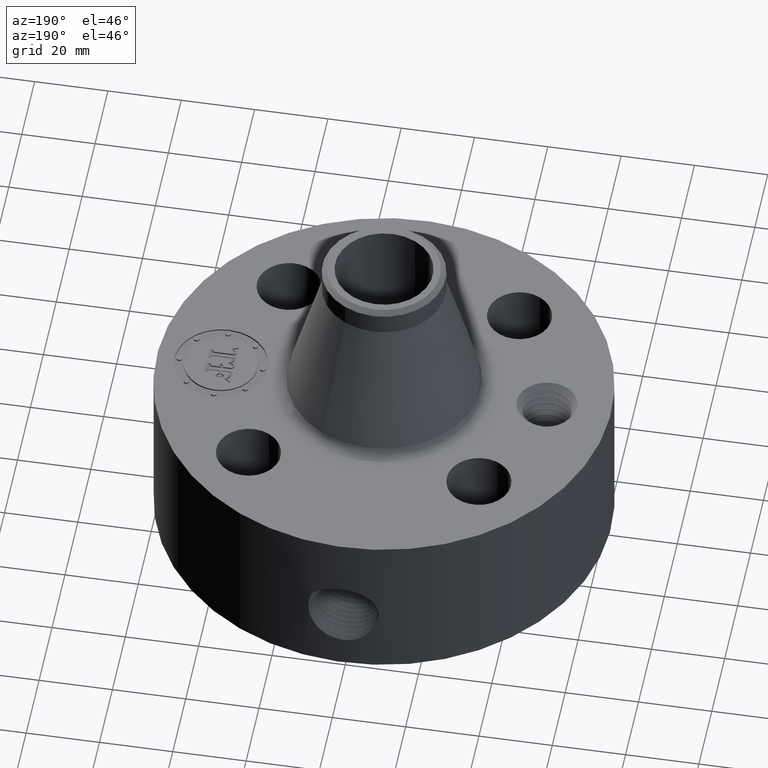
[diagram: clean part render]
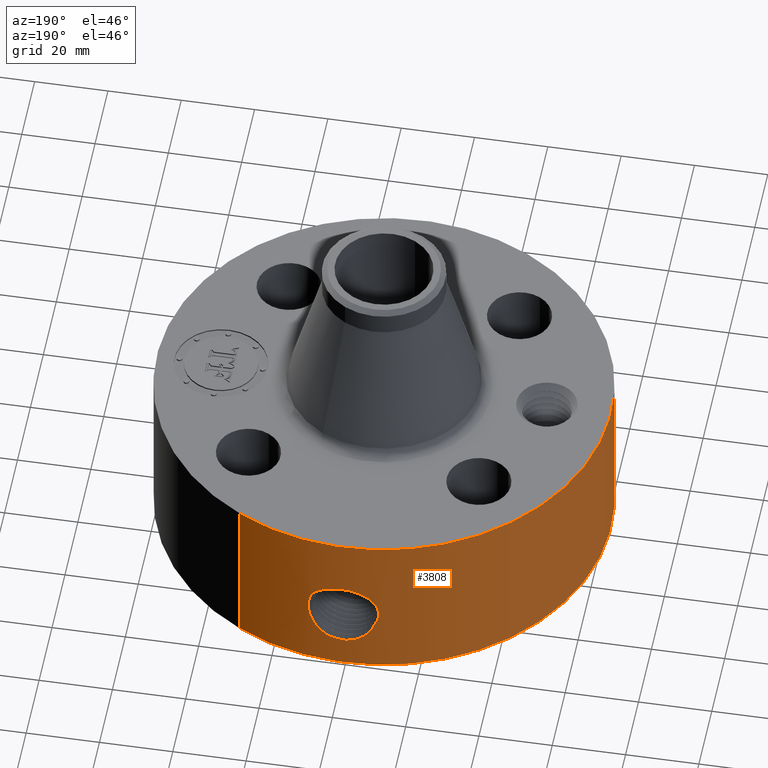
[diagram: same view with one face highlighted and labeled with its STEP entity id]
A machine part, auxiliary view. The second image highlights one B-rep face of the part: STEP entity #3808.
In plain terms, the highlighted cylindrical surface (partial cylindrical patch) has radius 61.976 mm, axis along (0, 0, -1).
Its self-contained STEP definition (entity closure, byte-faithful):
#2927=AXIS2_PLACEMENT_3D('Circle Axis2P3D',#2925,#2926,$) ;
#3663=AXIS2_PLACEMENT_3D('Cylinder Axis2P3D',#3660,#3661,#3662) ;
#3667=AXIS2_PLACEMENT_3D('Circle Axis2P3D',#3665,#3666,$) ;
#2920=CARTESIAN_POINT('Vertex',(1.1697983142,2.14130145102,1.75000000001)) ;
#2922=CARTESIAN_POINT('Vertex',(-1.1697983142,-2.14130145102,1.75000000001)) ;
#2925=CARTESIAN_POINT('Axis2P3D Location',(0.,0.,1.75000000001)) ;
#3660=CARTESIAN_POINT('Axis2P3D Location',(0.,0.,1.75000000001)) ;
#3665=CARTESIAN_POINT('Axis2P3D Location',(0.,0.,2.79741234551E-016)) ;
#3669=CARTESIAN_POINT('Vertex',(-1.1697983142,-2.14130145102,2.79741234551E-016)) ;
#3671=CARTESIAN_POINT('Vertex',(1.1697983142,2.14130145102,2.79741234551E-016)) ;
#3674=CARTESIAN_POINT('Line Origine',(-1.1697983142,-2.14130145102,0.875000000004)) ;
#3679=CARTESIAN_POINT('Line Origine',(1.1697983142,2.14130145102,0.875000000004)) ;
#3691=CARTESIAN_POINT('Control Point',(-0.161921597663,2.43462140717,1.06474245937)) ;
#3692=CARTESIAN_POINT('Control Point',(-0.124761681234,2.4370928358,1.08394650334)) ;
#3693=CARTESIAN_POINT('Control Point',(-0.0845285028847,2.43901250292,1.0973010247)) ;
#3694=CARTESIAN_POINT('Control Point',(-0.0426266272238,2.43998754964,1.10403308462)) ;
#3695=CARTESIAN_POINT('Control Point',(-0.000718733642933,2.43999989415,1.10411849633)) ;
#3696=CARTESIAN_POINT('Vertex',(-0.161921603957,2.43462140677,1.06474245628)) ;
#3698=CARTESIAN_POINT('Vertex',(-0.00071846914496,2.43999989423,1.10411850216)) ;
#3702=CARTESIAN_POINT('Control Point',(-0.16989837306,2.43407776024,1.06094225976)) ;
#3703=CARTESIAN_POINT('Control Point',(-0.167252430961,2.43426244672,1.06223769884)) ;
#3704=CARTESIAN_POINT('Control Point',(-0.164593291317,2.43444371839,1.06350443812)) ;
#3705=CARTESIAN_POINT('Control Point',(-0.161921603303,2.4346214068,1.06474245341)) ;
#3706=CARTESIAN_POINT('Vertex',(-0.16989837306,2.43407776024,1.06094225976)) ;
#3710=CARTESIAN_POINT('Control Point',(-0.328116387489,2.4178378019,0.618661723858)) ;
#3711=CARTESIAN_POINT('Control Point',(-0.35126682774,2.4146961359,0.657920672738)) ;
#3712=CARTESIAN_POINT('Control Point',(-0.3675370712,2.41220597726,0.701967162842)) ;
#3713=CARTESIAN_POINT('Control Point',(-0.374754425762,2.41102143699,0.749647117423)) ;
#3714=CARTESIAN_POINT('Control Point',(-0.370017228771,2.41184047688,0.818715678685)) ;
#3715=CARTESIAN_POINT('Control Point',(-0.346589006547,2.41527741699,0.882571964519)) ;
#3716=CARTESIAN_POINT('Control Point',(-0.337668354668,2.41655315485,0.901622048981)) ;
#3717=CARTESIAN_POINT('Control Point',(-0.30776426632,2.42066054448,0.953874985382)) ;
#3718=CARTESIAN_POINT('Control Point',(-0.266998854197,2.42558827079,0.998208638787)) ;
#3719=CARTESIAN_POINT('Control Point',(-0.236947856094,2.42878500543,1.02314596167)) ;
#3720=CARTESIAN_POINT('Control Point',(-0.204355858351,2.43167263137,1.04407205891)) ;
#3721=CARTESIAN_POINT('Control Point',(-0.16989837306,2.43407776024,1.06094225976)) ;
#3722=CARTESIAN_POINT('Vertex',(-0.328116863787,2.41783753267,0.618661777742)) ;
#3726=CARTESIAN_POINT('Control Point',(-0.32042422399,2.41886922274,0.600797421047)) ;
#3727=CARTESIAN_POINT('Control Point',(-0.323151377015,2.41850796059,0.606680957362)) ;
#3728=CARTESIAN_POINT('Control Point',(-0.32571735253,2.41816336849,0.612639984979)) ;
#3729=CARTESIAN_POINT('Control Point',(-0.328118231473,2.41783755166,0.618665577787)) ;
#3730=CARTESIAN_POINT('Vertex',(-0.32042488499,2.41886937056,0.600798487442)) ;
#3734=CARTESIAN_POINT('Control Point',(-0.0268393762839,2.43985238241,0.340897556554)) ;
#3735=CARTESIAN_POINT('Control Point',(-0.111814843384,2.43891761744,0.352087011189)) ;
#3736=CARTESIAN_POINT('Control Point',(-0.192381419422,2.4342320407,0.392047143247)) ;
#3737=CARTESIAN_POINT('Control Point',(-0.253315060842,2.42735806859,0.45429132194)) ;
#3738=CARTESIAN_POINT('Control Point',(-0.2960420997,2.42209909205,0.525167593064)) ;
#3739=CARTESIAN_POINT('Control Point',(-0.320424554948,2.4188691789,0.600798563388)) ;
#3740=CARTESIAN_POINT('Vertex',(-0.0268393762839,2.43985238241,0.340897556554)) ;
#3744=CARTESIAN_POINT('Control Point',(-0.0268393762839,2.43985238241,0.340897556554)) ;
#3745=CARTESIAN_POINT('Control Point',(-0.0178847904718,2.43995088652,0.340836461491)) ;
#3746=CARTESIAN_POINT('Control Point',(-0.00893312174488,2.44000001,0.340995456562)) ;
#3747=CARTESIAN_POINT('Control Point',(2.72878352834E-006,2.44000000001,0.341374667803)) ;
#3748=CARTESIAN_POINT('Vertex',(2.72878353331E-006,2.44000000001,0.341374667803)) ;
#3752=CARTESIAN_POINT('Control Point',(0.165475449319,2.43438244237,0.375082959451)) ;
#3753=CARTESIAN_POINT('Control Point',(0.112561961607,2.43797919981,0.354988749023)) ;
#3754=CARTESIAN_POINT('Control Point',(0.0565391785854,2.43999993678,0.343773908797)) ;
#3755=CARTESIAN_POINT('Control Point',(2.72878353268E-006,2.44000000001,0.341374667803)) ;
#3756=CARTESIAN_POINT('Vertex',(0.165475449319,2.43438244237,0.375082959451)) ;
#3760=CARTESIAN_POINT('Control Point',(0.165475449319,2.43438244237,0.375082959451)) ;
#3761=CARTESIAN_POINT('Control Point',(0.175740355042,2.43368469256,0.380334541078)) ;
#3762=CARTESIAN_POINT('Control Point',(0.185738682548,2.43293968557,0.386087518414)) ;
#3763=CARTESIAN_POINT('Control Point',(0.195421989316,2.43216164063,0.392285375744)) ;
#3764=CARTESIAN_POINT('Vertex',(0.195421989316,2.43216164063,0.392285375744)) ;
#3768=CARTESIAN_POINT('Control Point',(0.195421989316,2.43216164063,0.392285375744)) ;
#3769=CARTESIAN_POINT('Control Point',(0.247998274294,2.42793718365,0.425937136214)) ;
#3770=CARTESIAN_POINT('Control Point',(0.293011532848,2.42289055351,0.470601242801)) ;
#3771=CARTESIAN_POINT('Control Point',(0.328229741813,2.41805808377,0.522425706064)) ;
#3772=CARTESIAN_POINT('Control Point',(0.382261846784,2.41005605303,0.639676923907)) ;
#3773=CARTESIAN_POINT('Control Point',(0.395270517985,2.4077303253,0.768065726479)) ;
#3774=CARTESIAN_POINT('Control Point',(0.390965859778,2.40847371332,0.835617745372)) ;
#3775=CARTESIAN_POINT('Control Point',(0.375402848798,2.41110143568,0.902021538032)) ;
#3776=CARTESIAN_POINT('Control Point',(0.348525603778,2.41498031122,0.964426404841)) ;
#3777=CARTESIAN_POINT('Vertex',(0.348525603778,2.41498031122,0.964426404841)) ;
#3781=CARTESIAN_POINT('Control Point',(0.348525603778,2.41498031122,0.964426404841)) ;
#3782=CARTESIAN_POINT('Control Point',(0.294301928899,2.4228057742,1.02385968626)) ;
#3783=CARTESIAN_POINT('Control Point',(0.226049800313,2.4311025376,1.06810664465)) ;
#3784=CARTESIAN_POINT('Control Point',(0.151999405676,2.43708485742,1.09575225398)) ;
#3785=CARTESIAN_POINT('Control Point',(0.0753414238431,2.44000079858,1.10784713779)) ;
#3786=CARTESIAN_POINT('Control Point',(-2.5857935471E-005,2.43999999987,1.10415298447)) ;
#3787=CARTESIAN_POINT('Vertex',(-2.58579354743E-005,2.43999999987,1.10415298447)) ;
#3791=CARTESIAN_POINT('Control Point',(-0.000718469128843,2.43999989423,1.10411850214)) ;
#3792=CARTESIAN_POINT('Control Point',(-0.000372184810261,2.4399999962,1.10413600914)) ;
#3793=CARTESIAN_POINT('Control Point',(-2.58579482019E-005,2.43999999987,1.10415298447)) ;
#2926=DIRECTION('Axis2P3D Direction',(0.,0.,-0.0393700787402)) ;
#3661=DIRECTION('Axis2P3D Direction',(0.,0.,-0.0393700787402)) ;
#3662=DIRECTION('Axis2P3D XDirection',(0.0188750212049,0.0345504945626,0.)) ;
#3666=DIRECTION('Axis2P3D Direction',(0.,0.,-0.0393700787402)) ;
#3675=DIRECTION('Vector Direction',(0.,0.,-0.0393700787402)) ;
#3680=DIRECTION('Vector Direction',(0.,0.,-0.0393700787402)) ;
#3676=VECTOR('Line Direction',#3675,0.0393700787402) ;
#3681=VECTOR('Line Direction',#3680,0.0393700787402) ;
#3685=ORIENTED_EDGE('',*,*,#3673,.F.) ;
#3686=ORIENTED_EDGE('',*,*,#3678,.T.) ;
#3687=ORIENTED_EDGE('',*,*,#2929,.T.) ;
#3688=ORIENTED_EDGE('',*,*,#3683,.F.) ;
#3796=ORIENTED_EDGE('',*,*,#3700,.F.) ;
#3797=ORIENTED_EDGE('',*,*,#3708,.F.) ;
#3798=ORIENTED_EDGE('',*,*,#3724,.F.) ;
#3799=ORIENTED_EDGE('',*,*,#3732,.F.) ;
#3800=ORIENTED_EDGE('',*,*,#3742,.F.) ;
#3801=ORIENTED_EDGE('',*,*,#3750,.T.) ;
#3802=ORIENTED_EDGE('',*,*,#3758,.F.) ;
#3803=ORIENTED_EDGE('',*,*,#3766,.T.) ;
#3804=ORIENTED_EDGE('',*,*,#3779,.T.) ;
#3805=ORIENTED_EDGE('',*,*,#3789,.T.) ;
#3806=ORIENTED_EDGE('',*,*,#3794,.F.) ;
#3807=FACE_BOUND('',#3795,.T.) ;
#3808=ADVANCED_FACE('PartBody',(#3689,#3807),#3664,.T.) ;
#3690=B_SPLINE_CURVE_WITH_KNOTS('',4,(#3691,#3692,#3693,#3694,#3695),.UNSPECIFIED.,.F.,.U.,(5,5),(0.175518111332,6.3746236711),.UNSPECIFIED.) ;
#3701=B_SPLINE_CURVE_WITH_KNOTS('',3,(#3702,#3703,#3704,#3705),.UNSPECIFIED.,.F.,.U.,(4,4),(0.,0.330159471807),.UNSPECIFIED.) ;
#3709=B_SPLINE_CURVE_WITH_KNOTS('',5,(#3710,#3711,#3712,#3713,#3714,#3715,#3716,#3717,#3718,#3719,#3720,#3721),.UNSPECIFIED.,.F.,.U.,(6,3,3,6),(0.,8.53095161516,12.3556757929,19.5216585171),.UNSPECIFIED.) ;
#3725=B_SPLINE_CURVE_WITH_KNOTS('',3,(#3726,#3727,#3728,#3729),.UNSPECIFIED.,.F.,.U.,(4,4),(9.56540719603,10.2865899639),.UNSPECIFIED.) ;
#3733=B_SPLINE_CURVE_WITH_KNOTS('',5,(#3734,#3735,#3736,#3737,#3738,#3739),.UNSPECIFIED.,.F.,.U.,(6,6),(0.,14.8989645108),.UNSPECIFIED.) ;
#3743=B_SPLINE_CURVE_WITH_KNOTS('',3,(#3744,#3745,#3746,#3747),.UNSPECIFIED.,.F.,.U.,(4,4),(0.,0.933900822138),.UNSPECIFIED.) ;
#3751=B_SPLINE_CURVE_WITH_KNOTS('',3,(#3752,#3753,#3754,#3755),.UNSPECIFIED.,.F.,.U.,(4,4),(0.,5.90871980154),.UNSPECIFIED.) ;
#3759=B_SPLINE_CURVE_WITH_KNOTS('',3,(#3760,#3761,#3762,#3763),.UNSPECIFIED.,.F.,.U.,(4,4),(0.,1.20345894557),.UNSPECIFIED.) ;
#3767=B_SPLINE_CURVE_WITH_KNOTS('',5,(#3768,#3769,#3770,#3771,#3772,#3773,#3774,#3775,#3776),.UNSPECIFIED.,.F.,.U.,(6,3,6),(0.,10.890460319,22.7389456999),.UNSPECIFIED.) ;
#3780=B_SPLINE_CURVE_WITH_KNOTS('',5,(#3781,#3782,#3783,#3784,#3785,#3786),.UNSPECIFIED.,.F.,.U.,(6,6),(0.,14.0876990615),.UNSPECIFIED.) ;
#3790=B_SPLINE_CURVE_WITH_KNOTS('',2,(#3791,#3792,#3793),.UNSPECIFIED.,.F.,.U.,(3,3),(1.28068418482,1.30657844044),.UNSPECIFIED.) ;
#2928=CIRCLE('generated circle',#2927,2.44000000001) ;
#3668=CIRCLE('generated circle',#3667,2.44000000001) ;
#3664=CYLINDRICAL_SURFACE('generated cylinder',#3663,2.44000000001) ;
#2929=EDGE_CURVE('',#2923,#2921,#2928,.T.) ;
#3673=EDGE_CURVE('',#3670,#3672,#3668,.T.) ;
#3678=EDGE_CURVE('',#3670,#2923,#3677,.F.) ;
#3683=EDGE_CURVE('',#3672,#2921,#3682,.F.) ;
#3700=EDGE_CURVE('',#3697,#3699,#3690,.T.) ;
#3708=EDGE_CURVE('',#3707,#3697,#3701,.T.) ;
#3724=EDGE_CURVE('',#3723,#3707,#3709,.T.) ;
#3732=EDGE_CURVE('',#3731,#3723,#3725,.T.) ;
#3742=EDGE_CURVE('',#3741,#3731,#3733,.T.) ;
#3750=EDGE_CURVE('',#3741,#3749,#3743,.T.) ;
#3758=EDGE_CURVE('',#3757,#3749,#3751,.T.) ;
#3766=EDGE_CURVE('',#3757,#3765,#3759,.T.) ;
#3779=EDGE_CURVE('',#3765,#3778,#3767,.T.) ;
#3789=EDGE_CURVE('',#3778,#3788,#3780,.T.) ;
#3794=EDGE_CURVE('',#3699,#3788,#3790,.T.) ;
#3684=EDGE_LOOP('',(#3685,#3686,#3687,#3688)) ;
#3795=EDGE_LOOP('',(#3796,#3797,#3798,#3799,#3800,#3801,#3802,#3803,#3804,#3805,#3806)) ;
#3689=FACE_OUTER_BOUND('',#3684,.T.) ;
#3677=LINE('Line',#3674,#3676) ;
#3682=LINE('Line',#3679,#3681) ;
#2921=VERTEX_POINT('',#2920) ;
#2923=VERTEX_POINT('',#2922) ;
#3670=VERTEX_POINT('',#3669) ;
#3672=VERTEX_POINT('',#3671) ;
#3697=VERTEX_POINT('',#3696) ;
#3699=VERTEX_POINT('',#3698) ;
#3707=VERTEX_POINT('',#3706) ;
#3723=VERTEX_POINT('',#3722) ;
#3731=VERTEX_POINT('',#3730) ;
#3741=VERTEX_POINT('',#3740) ;
#3749=VERTEX_POINT('',#3748) ;
#3757=VERTEX_POINT('',#3756) ;
#3765=VERTEX_POINT('',#3764) ;
#3778=VERTEX_POINT('',#3777) ;
#3788=VERTEX_POINT('',#3787) ;